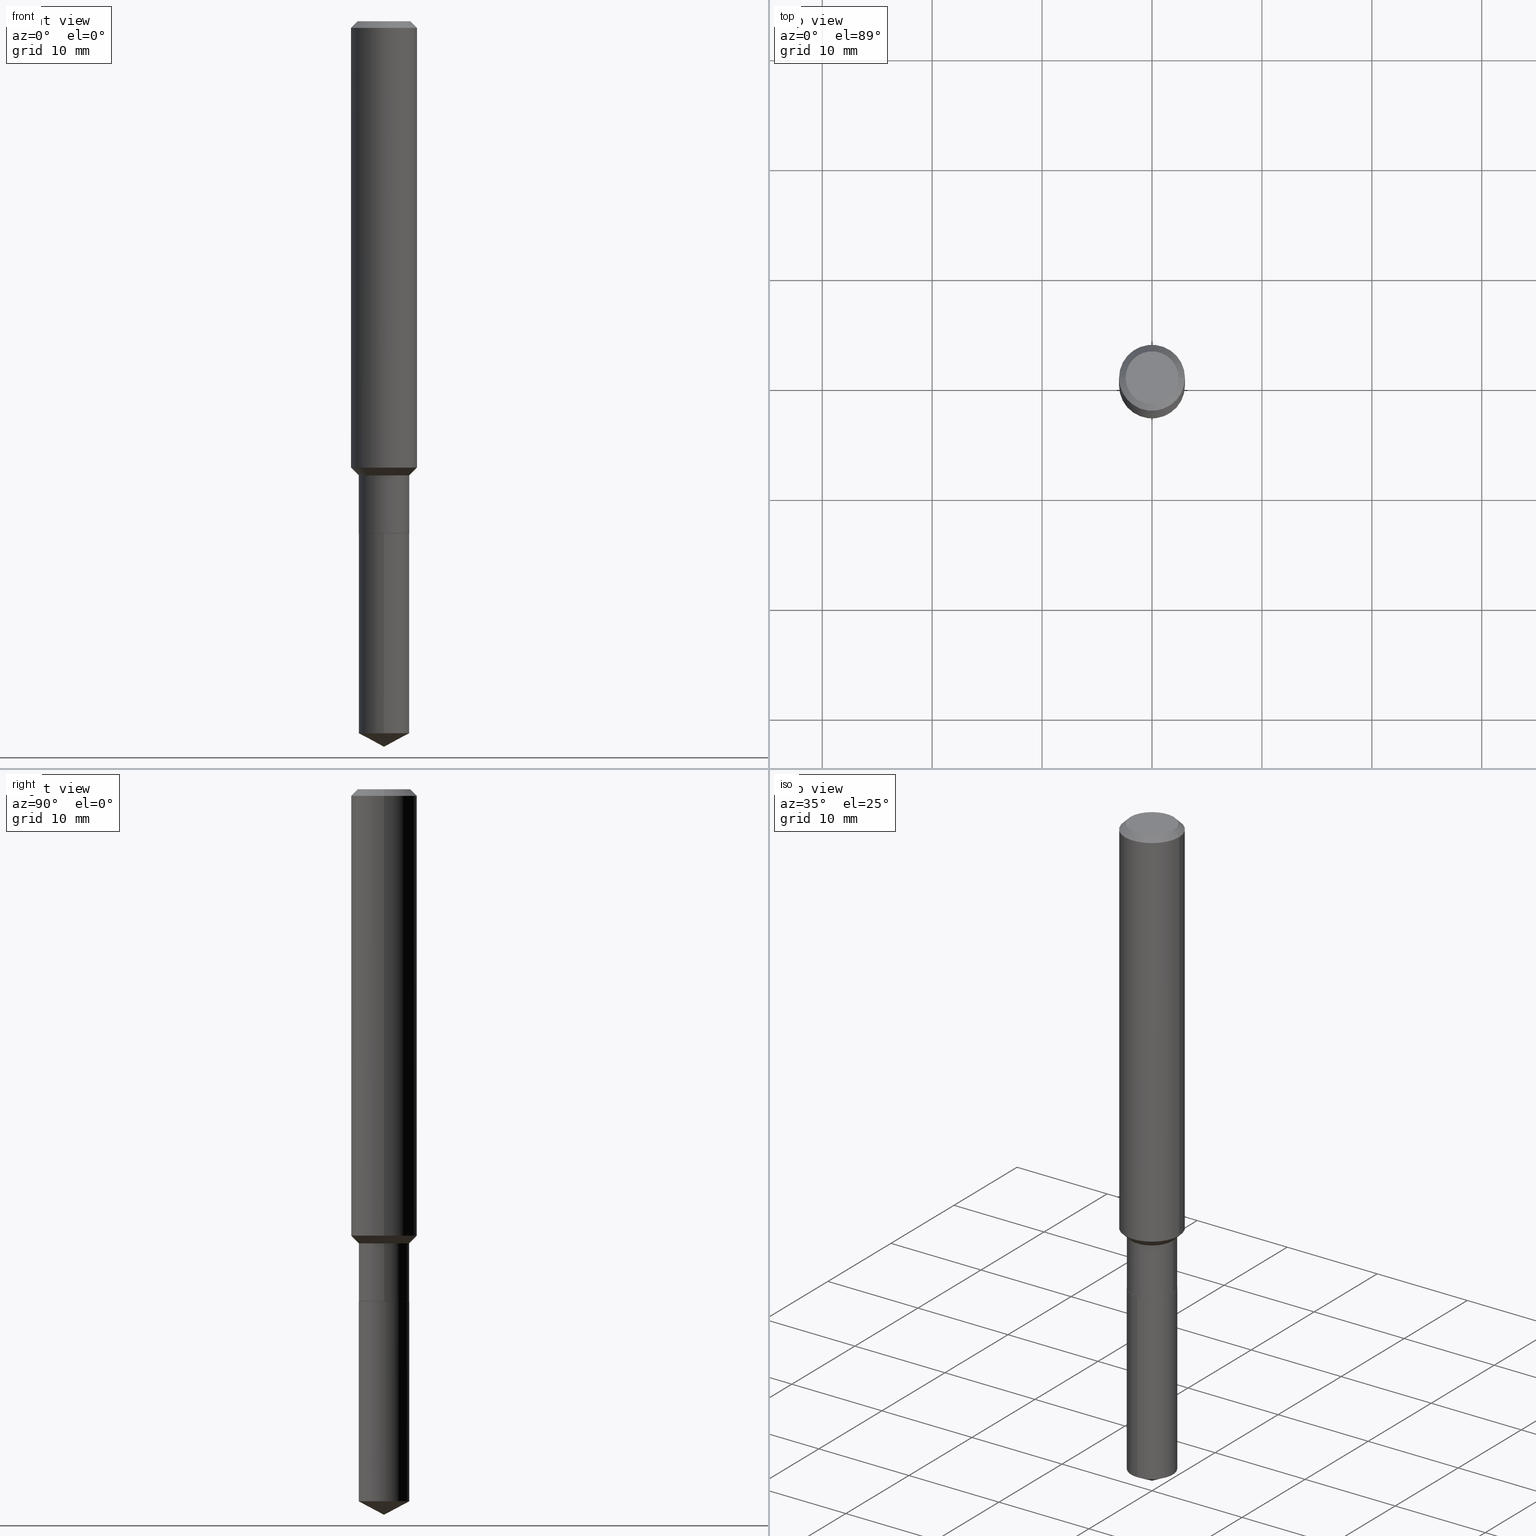
[diagram: canonical four-view strip — front | top / right | iso, engineering-drawing reading convention]
A machine part, canonical four-view strip (front | top / right | iso — engineering-drawing reading convention). The complete STEP part file that produces these views, byte-faithful:
ISO-10303-21;
HEADER;
FILE_DESCRIPTION (( 'STEP AP203' ),
    '1' );
FILE_NAME ('67616.STEP',
    '2024-04-25T07:20:22',
    ( '' ),
    ( '' ),
    'SwSTEP 2.0',
    'SolidWorks 2023',
    '' );
FILE_SCHEMA (( 'CONFIG_CONTROL_DESIGN' ));
ENDSEC;

DATA;
#1 = DIRECTION ( 'NONE',  ( -2.445468806185136597E-29, 3.491481338843145583E-15, 1.000000000000000000 ) ) ;
#2 = ORIENTED_EDGE ( 'NONE', *, *, #209, .F. ) ;
#3 = COORDINATED_UNIVERSAL_TIME_OFFSET ( 5, 0, .BEHIND. ) ;
#4 = VECTOR ( 'NONE', #157, 39.37007874015748143 ) ;
#5 = CIRCLE ( 'NONE', #415, 0.09055000000000000548 ) ;
#6 = DIRECTION ( 'NONE',  ( -2.445468806185136597E-29, 3.491481338843145583E-15, 1.000000000000000000 ) ) ;
#7 = COORDINATED_UNIVERSAL_TIME_OFFSET ( 5, 0, .BEHIND. ) ;
#8 = DIRECTION ( 'NONE',  ( -2.445468806185136597E-29, 3.491481338843145583E-15, 1.000000000000000000 ) ) ;
#9 = DIRECTION ( 'NONE',  ( 1.000000000000000000, -6.982962677686267499E-15, 4.875432709231658792E-29 ) ) ;
#10 = VECTOR ( 'NONE', #460, 39.37007874015748143 ) ;
#11 = ADVANCED_FACE ( 'NONE', ( #452 ), #405, .T. ) ;
#12 = CARTESIAN_POINT ( 'NONE',  ( 6.354235181530655358E-29, -9.072366735996945191E-15, -2.598399999999999821 ) ) ;
#13 = EDGE_CURVE ( 'NONE', #437, #378, #393, .T. ) ;
#14 = DIRECTION ( 'NONE',  ( -6.982962677686265133E-15, -1.000000000000000000, 3.541896320645524581E-15 ) ) ;
#15 = CARTESIAN_POINT ( 'NONE',  ( -0.09055000000000000548, 6.433964472307707573E-16, -4.454095724225817219E-30 ) ) ;
#16 = ORIENTED_EDGE ( 'NONE', *, *, #92, .T. ) ;
#17 = MANIFOLD_SOLID_BREP ( 'Body-Move/Copy2[1]', #131 ) ;
#18 = FACE_OUTER_BOUND ( 'NONE', #372, .T. ) ;
#19 = CIRCLE ( 'NONE', #341, 0.09055000000000000548 ) ;
#20 = CARTESIAN_POINT ( 'NONE',  ( -0.09054999999999999161, -5.397564565235639118E-15, -1.626299999999999857 ) ) ;
#21 = EDGE_LOOP ( 'NONE', ( #16, #145, #328, #257 ) ) ;
#22 = CARTESIAN_POINT ( 'NONE',  ( 4.486457071827251481E-29, -6.405471664241634119E-15, -1.834599999999999786 ) ) ;
#23 = ORIENTED_EDGE ( 'NONE', *, *, #485, .T. ) ;
#24 = PLANE ( 'NONE',  #119 ) ;
#25 = VECTOR ( 'NONE', #240, 39.37007874015748143 ) ;
#26 = VERTEX_POINT ( 'NONE', #80 ) ;
#27 = AXIS2_PLACEMENT_3D ( 'NONE', #144, #147, #470 ) ;
#28 = LOCAL_TIME ( 3, 20, 22.00000000000000000, #120 ) ;
#29 = DIRECTION ( 'NONE',  ( -2.445468806185136597E-29, 3.491481338843145583E-15, 1.000000000000000000 ) ) ;
#30 = APPROVAL ( #282, 'UNSPECIFIED' ) ;
#31 = ORIENTED_EDGE ( 'NONE', *, *, #101, .T. ) ;
#32 = ORIENTED_EDGE ( 'NONE', *, *, #485, .F. ) ;
#33 = CARTESIAN_POINT ( 'NONE',  ( 0.1181000000000001077, -8.246878922347488542E-16, 5.758764772215005345E-30 ) ) ;
#34 = AXIS2_PLACEMENT_3D ( 'NONE', #229, #97, #377 ) ;
#35 = FACE_OUTER_BOUND ( 'NONE', #204, .T. ) ;
#36 = PERSON_AND_ORGANIZATION ( #175, #408 ) ;
#37 = CARTESIAN_POINT ( 'NONE',  ( 6.354336269142020181E-29, -9.072223231152016117E-15, -2.598399999999999821 ) ) ;
#38 = PERSON_AND_ORGANIZATION ( #175, #408 ) ;
#39 = DIRECTION ( 'NONE',  ( 1.000000000000000000, -6.982962677686266711E-15, 0.000000000000000000 ) ) ;
#40 = CIRCLE ( 'NONE', #227, 0.1181000000000001909 ) ;
#41 = AXIS2_PLACEMENT_3D ( 'NONE', #379, #226, #186 ) ;
#42 = CARTESIAN_POINT ( 'NONE',  ( -0.09055000000000000548, -5.397564565235639118E-15, -1.834100000000000064 ) ) ;
#43 = CALENDAR_DATE ( 2024, 25, 4 ) ;
#44 = LINE ( 'NONE', #355, #140 ) ;
#45 = APPLICATION_PROTOCOL_DEFINITION ( 'international standard', 'config_control_design', 1994, #469 ) ;
#46 = DIRECTION ( 'NONE',  ( 0.7071067811865487940, -2.468850131082270471E-15, 0.7071067811865462405 ) ) ;
#47 = EDGE_LOOP ( 'NONE', ( #23, #311, #162, #381 ) ) ;
#48 = CC_DESIGN_DATE_AND_TIME_ASSIGNMENT ( #123, #275, ( #112 ) ) ;
#49 = VECTOR ( 'NONE', #174, 39.37007874015748854 ) ;
#50 = CARTESIAN_POINT ( 'NONE',  ( 6.354235181530655358E-29, -9.072366735996943613E-15, -2.598399999999999821 ) ) ;
#51 = ORIENTED_EDGE ( 'NONE', *, *, #198, .F. ) ;
#52 = DIRECTION ( 'NONE',  ( -2.445468806185136597E-29, 3.491481338843145583E-15, 1.000000000000000000 ) ) ;
#53 = ORIENTED_EDGE ( 'NONE', *, *, #143, .F. ) ;
#54 = DIRECTION ( 'NONE',  ( 1.000000000000000000, -6.982962677686266711E-15, 0.000000000000000000 ) ) ;
#55 = EDGE_CURVE ( 'NONE', #284, #299, #245, .T. ) ;
#56 = CC_DESIGN_APPROVAL ( #215, ( #425 ) ) ;
#57 = CARTESIAN_POINT ( 'NONE',  ( -6.323072704644292482E-16, -0.09055000000000894278, -2.550253710963052978 ) ) ;
#58 = ORIENTED_EDGE ( 'NONE', *, *, #258, .T. ) ;
#59 = DIRECTION ( 'NONE',  ( 2.445468806185136597E-29, -3.491481338843145583E-15, -1.000000000000000000 ) ) ;
#60 = VERTEX_POINT ( 'NONE', #238 ) ;
#61 = ADVANCED_FACE ( 'NONE', ( #35 ), #200, .F. ) ;
#62 = CARTESIAN_POINT ( 'NONE',  ( 0.09005000000000000504, -7.034287453367283370E-15, -1.834599999999999786 ) ) ;
#63 = ORIENTED_EDGE ( 'NONE', *, *, #283, .F. ) ;
#64 = DIRECTION ( 'NONE',  ( -1.000000000000000000, 6.982962677686265922E-15, -4.876176775795935793E-29 ) ) ;
#65 = CONICAL_SURFACE ( 'NONE', #171, 0.09005000000000000504, 0.7853981633975507526 ) ;
#66 = ORIENTED_EDGE ( 'NONE', *, *, #84, .F. ) ;
#67 = CIRCLE ( 'NONE', #95, 0.1180999999999999966 ) ;
#68 = APPROVAL_PERSON_ORGANIZATION ( #168, #30, #127 ) ;
#69 = EDGE_CURVE ( 'NONE', #361, #85, #449, .T. ) ;
#70 = ORIENTED_EDGE ( 'NONE', *, *, #390, .T. ) ;
#71 = LINE ( 'NONE', #75, #188 ) ;
#72 = ORIENTED_EDGE ( 'NONE', *, *, #472, .T. ) ;
#73 = EDGE_CURVE ( 'NONE', #359, #60, #40, .T. ) ;
#74 =( NAMED_UNIT ( * ) SI_UNIT ( $, .STERADIAN. ) SOLID_ANGLE_UNIT ( ) );
#75 = CARTESIAN_POINT ( 'NONE',  ( 6.433964472308155251E-16, 0.09054999999999360782, -1.834600000000000231 ) ) ;
#76 = ORIENTED_EDGE ( 'NONE', *, *, #143, .T. ) ;
#77 = AXIS2_PLACEMENT_3D ( 'NONE', #118, #383, #242 ) ;
#78 = CONICAL_SURFACE ( 'NONE', #468, 74.04434902938429275, 1.082104136236490710 ) ;
#79 = PERSON_AND_ORGANIZATION_ROLE ( 'creator' ) ;
#80 = CARTESIAN_POINT ( 'NONE',  ( 0.1180999999999999966, -9.071566814582237199E-16, -0.02362000000000013741 ) ) ;
#81 = CARTESIAN_POINT ( 'NONE',  ( 0.000000000000000000, 0.000000000000000000, 0.000000000000000000 ) ) ;
#82 = ADVANCED_FACE ( 'NONE', ( #274 ), #65, .T. ) ;
#83 = CARTESIAN_POINT ( 'NONE',  ( 6.236546352921157625E-29, -8.904191230834146069E-15, -2.550253710963053422 ) ) ;
#84 = EDGE_CURVE ( 'NONE', #337, #60, #314, .T. ) ;
#85 = VERTEX_POINT ( 'NONE', #346 ) ;
#86 = APPROVAL_DATE_TIME ( #352, #30 ) ;
#87 = VECTOR ( 'NONE', #105, 39.37007874015748143 ) ;
#88 = AXIS2_PLACEMENT_3D ( 'NONE', #81, #461, #241 ) ;
#89 = LINE ( 'NONE', #15, #10 ) ;
#90 = VERTEX_POINT ( 'NONE', #276 ) ;
#91 = CARTESIAN_POINT ( 'NONE',  ( 0.000000000000000000, 0.000000000000000000, 0.000000000000000000 ) ) ;
#92 = EDGE_CURVE ( 'NONE', #437, #90, #262, .T. ) ;
#93 = DIRECTION ( 'NONE',  ( 1.000000000000000000, -6.982962677686266711E-15, 4.876176775795935793E-29 ) ) ;
#94 = ORIENTED_EDGE ( 'NONE', *, *, #69, .F. ) ;
#95 = AXIS2_PLACEMENT_3D ( 'NONE', #182, #293, #54 ) ;
#96 = UNCERTAINTY_MEASURE_WITH_UNIT (LENGTH_MEASURE( 1.000000000000000082E-05 ), #102, 'distance_accuracy_value', 'NONE');
#97 = DIRECTION ( 'NONE',  ( -2.445441495355086560E-29, 3.491520449506213209E-15, 1.000000000000000000 ) ) ;
#98 = EDGE_LOOP ( 'NONE', ( #58, #414, #183, #94 ) ) ;
#99 = CARTESIAN_POINT ( 'NONE',  ( 0.000000000000000000, 0.000000000000000000, 0.000000000000000000 ) ) ;
#100 = ORIENTED_EDGE ( 'NONE', *, *, #317, .F. ) ;
#101 = EDGE_CURVE ( 'NONE', #85, #138, #348, .T. ) ;
#102 =( CONVERSION_BASED_UNIT ( 'INCH', #267 ) LENGTH_UNIT ( ) NAMED_UNIT ( #107 ) );
#103 = DIRECTION ( 'NONE',  ( -2.445468806185136597E-29, 3.491481338843145583E-15, 1.000000000000000000 ) ) ;
#104 = ORIENTED_EDGE ( 'NONE', *, *, #236, .T. ) ;
#105 = DIRECTION ( 'NONE',  ( 0.7071067811865460184, -7.319954787623251312E-15, -0.7071067811865490160 ) ) ;
#106 = ORIENTED_EDGE ( 'NONE', *, *, #55, .F. ) ;
#107 = DIMENSIONAL_EXPONENTS ( 1.000000000000000000, 0.000000000000000000, 0.000000000000000000, 0.000000000000000000, 0.000000000000000000, 0.000000000000000000, 0.000000000000000000 ) ;
#108 = DIRECTION ( 'NONE',  ( -6.982962677686266711E-15, -1.000000000000000000, 3.016949744521549444E-15 ) ) ;
#109 = DIRECTION ( 'NONE',  ( 1.000000000000000000, -6.982962677686267499E-15, 0.000000000000000000 ) ) ;
#110 = CONICAL_SURFACE ( 'NONE', #179, 0.09054999999999999161, 0.7853981633974501664 ) ;
#111 = EDGE_LOOP ( 'NONE', ( #63, #471, #76, #320 ) ) ;
#112 = SECURITY_CLASSIFICATION ( '', '', #279 ) ;
#113 = CC_DESIGN_PERSON_AND_ORGANIZATION_ASSIGNMENT ( #454, #347, ( #237 ) ) ;
#114 = DIRECTION ( 'NONE',  ( 1.000000000000000000, -6.982962677686266711E-15, 4.876176775795936353E-29 ) ) ;
#115 = DIRECTION ( 'NONE',  ( 2.445441495355086279E-29, -3.491520449506213209E-15, -1.000000000000000000 ) ) ;
#116 = FACE_OUTER_BOUND ( 'NONE', #111, .T. ) ;
#117 = PRODUCT_DEFINITION_SHAPE ( 'NONE', 'NONE',  #425 ) ;
#118 = CARTESIAN_POINT ( 'NONE',  ( 4.716267017698007905E-46, -6.733579360998555036E-32, -1.928573779297252010E-17 ) ) ;
#119 = AXIS2_PLACEMENT_3D ( 'NONE', #413, #264, #64 ) ;
#120 = COORDINATED_UNIVERSAL_TIME_OFFSET ( 5, 0, .BEHIND. ) ;
#121 = LOCAL_TIME ( 3, 20, 22.00000000000000000, #3 ) ;
#122 = CARTESIAN_POINT ( 'NONE',  ( 0.09005000000000000504, -7.034287453367283370E-15, -1.834599999999999786 ) ) ;
#123 = DATE_AND_TIME ( #43, #28 ) ;
#124 = EDGE_CURVE ( 'NONE', #284, #474, #391, .T. ) ;
#125 = PRODUCT ( '67616', '67616', '', ( #310 ) ) ;
#126 = DIRECTION ( 'NONE',  ( -2.445441495355086560E-29, 3.491520449506213209E-15, 1.000000000000000000 ) ) ;
#127 = APPROVAL_ROLE ( '' ) ;
#128 = EDGE_CURVE ( 'NONE', #301, #90, #429, .T. ) ;
#129 = DIRECTION ( 'NONE',  ( -6.982962677686266711E-15, -1.000000000000000000, 3.016949744521549444E-15 ) ) ;
#130 = APPROVAL_STATUS ( 'not_yet_approved' ) ;
#131 = CLOSED_SHELL ( 'NONE', ( #305, #292, #11, #407, #61 ) ) ;
#132 = AXIS2_PLACEMENT_3D ( 'NONE', #323, #287, #433 ) ;
#133 = CC_DESIGN_APPROVAL ( #30, ( #237 ) ) ;
#134 = PRODUCT_RELATED_PRODUCT_CATEGORY ( 'detail', '', ( #125 ) ) ;
#135 = CARTESIAN_POINT ( 'NONE',  ( 0.09447999999999998066, -7.704367267948738690E-16, -1.928573779296752193E-17 ) ) ;
#136 = ORIENTED_EDGE ( 'NONE', *, *, #55, .T. ) ;
#137 = DIRECTION ( 'NONE',  ( -2.445468806185136877E-29, 3.491481338843145188E-15, 1.000000000000000000 ) ) ;
#138 = VERTEX_POINT ( 'NONE', #42 ) ;
#139 = LINE ( 'NONE', #169, #289 ) ;
#140 = VECTOR ( 'NONE', #46, 39.37007874015748143 ) ;
#141 = CYLINDRICAL_SURFACE ( 'NONE', #281, 0.09055000000000000548 ) ;
#142 = EDGE_LOOP ( 'NONE', ( #136, #410 ) ) ;
#143 = EDGE_CURVE ( 'NONE', #359, #26, #155, .T. ) ;
#144 = CARTESIAN_POINT ( 'NONE',  ( 3.909693253888486103E-29, -5.582005790475478148E-15, -1.598749999999999671 ) ) ;
#145 = ORIENTED_EDGE ( 'NONE', *, *, #450, .T. ) ;
#146 = AXIS2_PLACEMENT_3D ( 'NONE', #180, #326, #404 ) ;
#147 = DIRECTION ( 'NONE',  ( -2.445468806185136597E-29, 3.491481338843145583E-15, 1.000000000000000000 ) ) ;
#148 = EDGE_LOOP ( 'NONE', ( #426, #233 ) ) ;
#149 = DIRECTION ( 'NONE',  ( -2.445441495355086560E-29, 3.491520449506213209E-15, 1.000000000000000000 ) ) ;
#150 = DIRECTION ( 'NONE',  ( -1.000000000000000000, 6.982962677686266711E-15, 0.000000000000000000 ) ) ;
#151 = ORIENTED_EDGE ( 'NONE', *, *, #92, .F. ) ;
#152 = DIRECTION ( 'NONE',  ( -2.445441495355086560E-29, 3.491520449506213209E-15, 1.000000000000000000 ) ) ;
#153 = ORIENTED_EDGE ( 'NONE', *, *, #205, .F. ) ;
#154 = AXIS2_PLACEMENT_3D ( 'NONE', #298, #224, #371 ) ;
#155 = LINE ( 'NONE', #33, #363 ) ;
#156 = CC_DESIGN_SECURITY_CLASSIFICATION ( #112, ( #237 ) ) ;
#157 = DIRECTION ( 'NONE',  ( -0.7071067811865487940, 7.493145998870358893E-15, 0.7071067811865462405 ) ) ;
#158 = CYLINDRICAL_SURFACE ( 'NONE', #392, 0.09055000000000000548 ) ;
#159 = CARTESIAN_POINT ( 'NONE',  ( 3.909693253888486103E-29, -5.582005790475478148E-15, -1.598749999999999671 ) ) ;
#160 = PERSON_AND_ORGANIZATION_ROLE ( 'design_owner' ) ;
#161 = DIRECTION ( 'NONE',  ( 1.000000000000000000, -6.982962677686266711E-15, 0.000000000000000000 ) ) ;
#162 = ORIENTED_EDGE ( 'NONE', *, *, #73, .F. ) ;
#163 = ADVANCED_FACE ( 'NONE', ( #116 ), #271, .T. ) ;
#164 = VECTOR ( 'NONE', #350, 39.37007874015748143 ) ;
#165 = AXIS2_PLACEMENT_3D ( 'NONE', #466, #216, #399 ) ;
#166 = CARTESIAN_POINT ( 'NONE',  ( -0.09054999999999999161, -5.034799654129836477E-15, -1.626299999999999857 ) ) ;
#167 = PERSON_AND_ORGANIZATION_ROLE ( 'classification_officer' ) ;
#168 = PERSON_AND_ORGANIZATION ( #175, #408 ) ;
#169 = CARTESIAN_POINT ( 'NONE',  ( -0.1181000000000001077, 8.391509709326790846E-16, -5.809262341591049389E-30 ) ) ;
#170 = VERTEX_POINT ( 'NONE', #322 ) ;
#171 = AXIS2_PLACEMENT_3D ( 'NONE', #451, #6, #235 ) ;
#172 = CONICAL_SURFACE ( 'NONE', #376, 0.09054999999999999161, 0.7853981633974501664 ) ;
#173 = DIRECTION ( 'NONE',  ( -2.445441495355086560E-29, 3.491520449506213209E-15, 1.000000000000000000 ) ) ;
#174 = DIRECTION ( 'NONE',  ( -6.165590087286847862E-15, -0.8829475928589283207, 0.4694715627858883078 ) ) ;
#175 = PERSON ( 'UNSPECIFIED', 'UNSPECIFIED', 'UNSPECIFIED', ('UNSPECIFIED'), ('UNSPECIFIED'), ('UNSPECIFIED') ) ;
#176 = CYLINDRICAL_SURFACE ( 'NONE', #132, 0.1181000000000001077 ) ;
#177 = EDGE_CURVE ( 'NONE', #170, #359, #44, .T. ) ;
#178 = EDGE_LOOP ( 'NONE', ( #31, #482, #32, #479 ) ) ;
#179 = AXIS2_PLACEMENT_3D ( 'NONE', #208, #8, #324 ) ;
#180 = CARTESIAN_POINT ( 'NONE',  ( 5.776197320209326656E-31, -8.246878922347558061E-17, -0.02362000000000013741 ) ) ;
#181 = ADVANCED_FACE ( 'NONE', ( #403 ), #110, .T. ) ;
#182 = CARTESIAN_POINT ( 'NONE',  ( 5.776197320209326656E-31, -8.246878922347558061E-17, -0.02362000000000013741 ) ) ;
#183 = ORIENTED_EDGE ( 'NONE', *, *, #101, .F. ) ;
#184 = DIRECTION ( 'NONE',  ( -6.982962677686266711E-15, -1.000000000000000000, 3.016949744521549444E-15 ) ) ;
#185 = EDGE_LOOP ( 'NONE', ( #309, #486, #189 ) ) ;
#186 = DIRECTION ( 'NONE',  ( 1.000000000000000000, -6.982962677686267499E-15, 0.000000000000000000 ) ) ;
#187 = CIRCLE ( 'NONE', #331, 0.09055000000000000548 ) ;
#188 = VECTOR ( 'NONE', #173, 39.37007874015748143 ) ;
#189 = ORIENTED_EDGE ( 'NONE', *, *, #390, .F. ) ;
#190 = DIRECTION ( 'NONE',  ( -2.438088387897960049E-29, 3.491481338843145188E-15, 1.000000000000000000 ) ) ;
#191 = ORIENTED_EDGE ( 'NONE', *, *, #317, .T. ) ;
#192 = FACE_OUTER_BOUND ( 'NONE', #178, .T. ) ;
#193 = ORIENTED_EDGE ( 'NONE', *, *, #124, .F. ) ;
#194 = AXIS2_PLACEMENT_3D ( 'NONE', #278, #126, #456 ) ;
#195 = LOCAL_TIME ( 3, 20, 22.00000000000000000, #421 ) ;
#196 = DIRECTION ( 'NONE',  ( -2.445468806185136877E-29, 3.491481338843145188E-15, 1.000000000000000000 ) ) ;
#197 = APPLICATION_CONTEXT ( 'configuration controlled 3d designs of mechanical parts and assemblies' ) ;
#198 = EDGE_CURVE ( 'NONE', #138, #337, #89, .T. ) ;
#199 = DIRECTION ( 'NONE',  ( -2.445468806185136597E-29, 3.491481338843145583E-15, 1.000000000000000000 ) ) ;
#200 = PLANE ( 'NONE',  #462 ) ;
#201 = APPROVAL_DATE_TIME ( #458, #215 ) ;
#202 = DIRECTION ( 'NONE',  ( 1.000000000000000000, -6.982962677686269077E-15, 0.000000000000000000 ) ) ;
#203 = APPROVAL_STATUS ( 'not_yet_approved' ) ;
#204 = EDGE_LOOP ( 'NONE', ( #304, #255 ) ) ;
#205 = EDGE_CURVE ( 'NONE', #337, #170, #356, .T. ) ;
#206 = CIRCLE ( 'NONE', #41, 0.09054999999999999161 ) ;
#207 = CC_DESIGN_APPROVAL ( #286, ( #112 ) ) ;
#208 = CARTESIAN_POINT ( 'NONE',  ( 3.977065919498887245E-29, -5.678196101360606544E-15, -1.626299999999999857 ) ) ;
#209 = EDGE_CURVE ( 'NONE', #301, #437, #357, .T. ) ;
#210 = APPROVAL_DATE_TIME ( #243, #286 ) ;
#211 = CARTESIAN_POINT ( 'NONE',  ( 3.977065919498887245E-29, -5.678196101360606544E-15, -1.626299999999999857 ) ) ;
#212 = CIRCLE ( 'NONE', #27, 0.1181000000000001909 ) ;
#213 = FACE_OUTER_BOUND ( 'NONE', #296, .T. ) ;
#214 = ORIENTED_EDGE ( 'NONE', *, *, #218, .F. ) ;
#215 = APPROVAL ( #130, 'UNSPECIFIED' ) ;
#216 = DIRECTION ( 'NONE',  ( -2.445468806185136597E-29, 3.491481338843145583E-15, 1.000000000000000000 ) ) ;
#217 = FACE_OUTER_BOUND ( 'NONE', #420, .T. ) ;
#218 = EDGE_CURVE ( 'NONE', #443, #378, #187, .T. ) ;
#219 = CARTESIAN_POINT ( 'NONE',  ( 6.433964472308331759E-16, 0.09054999999999360782, -1.834600000000000231 ) ) ;
#220 = ORIENTED_EDGE ( 'NONE', *, *, #73, .T. ) ;
#221 = CC_DESIGN_PERSON_AND_ORGANIZATION_ASSIGNMENT ( #277, #167, ( #112 ) ) ;
#222 = ORIENTED_EDGE ( 'NONE', *, *, #351, .T. ) ;
#223 =( NAMED_UNIT ( * ) PLANE_ANGLE_UNIT ( ) SI_UNIT ( $, .RADIAN. ) );
#224 = DIRECTION ( 'NONE',  ( -2.445441495355086560E-29, 3.491520449506213209E-15, 1.000000000000000000 ) ) ;
#225 = EDGE_LOOP ( 'NONE', ( #483, #106, #369, #222 ) ) ;
#226 = DIRECTION ( 'NONE',  ( -2.445468806185136597E-29, 3.491481338843145583E-15, 1.000000000000000000 ) ) ;
#227 = AXIS2_PLACEMENT_3D ( 'NONE', #159, #419, #202 ) ;
#228 = AXIS2_PLACEMENT_3D ( 'NONE', #280, #52, #360 ) ;
#229 = CARTESIAN_POINT ( 'NONE',  ( 4.486457071827251481E-29, -6.405471664241634119E-15, -1.834599999999999786 ) ) ;
#230 = ORIENTED_EDGE ( 'NONE', *, *, #177, .T. ) ;
#231 = DIRECTION ( 'NONE',  ( -2.445468806185136877E-29, 3.491481338843145188E-15, 1.000000000000000000 ) ) ;
#232 = CARTESIAN_POINT ( 'NONE',  ( 0.000000000000000000, 0.000000000000000000, 0.000000000000000000 ) ) ;
#233 = ORIENTED_EDGE ( 'NONE', *, *, #236, .F. ) ;
#234 = CARTESIAN_POINT ( 'NONE',  ( 0.09055000000000000548, -6.323072704644914696E-16, 4.415378070483220808E-30 ) ) ;
#235 = DIRECTION ( 'NONE',  ( 1.000000000000000000, -6.982962677686271444E-15, 0.000000000000000000 ) ) ;
#236 = EDGE_CURVE ( 'NONE', #412, #361, #455, .T. ) ;
#237 = PRODUCT_DEFINITION_FORMATION_WITH_SPECIFIED_SOURCE ( 'ANY', '', #125, .NOT_KNOWN. ) ;
#238 = CARTESIAN_POINT ( 'NONE',  ( -0.1181000000000001909, -4.742854819542799162E-15, -1.598749999999999671 ) ) ;
#239 = CALENDAR_DATE ( 2024, 25, 4 ) ;
#240 = DIRECTION ( 'NONE',  ( -0.7071067811865460184, 2.468850131082241283E-15, -0.7071067811865490160 ) ) ;
#241 = DIRECTION ( 'NONE',  ( 1.000000000000000000, 0.000000000000000000, 0.000000000000000000 ) ) ;
#242 = DIRECTION ( 'NONE',  ( 1.000000000000000000, -6.982962677686267499E-15, 4.875432709231658792E-29 ) ) ;
#243 = DATE_AND_TIME ( #427, #121 ) ;
#244 = DIRECTION ( 'NONE',  ( 6.273719981627778698E-15, 0.8829475928589315403, 0.4694715627858820350 ) ) ;
#245 = CIRCLE ( 'NONE', #77, 0.09447999999999998066 ) ;
#246 = PERSON_AND_ORGANIZATION ( #175, #408 ) ;
#247 = DIRECTION ( 'NONE',  ( -2.445441495355086560E-29, 3.491520449506213209E-15, 1.000000000000000000 ) ) ;
#248 = ORIENTED_EDGE ( 'NONE', *, *, #467, .F. ) ;
#249 = CARTESIAN_POINT ( 'NONE',  ( -8.992293894059875118E-28, 1.283891400363551782E-13, 36.77167874015748339 ) ) ;
#250 = AXIS2_PLACEMENT_3D ( 'NONE', #319, #285, #9 ) ;
#251 = DIRECTION ( 'NONE',  ( -2.445468806185136597E-29, 3.491481338843145583E-15, 1.000000000000000000 ) ) ;
#252 = CARTESIAN_POINT ( 'NONE',  ( -0.09005000000000000504, -5.762978703515552960E-15, -1.834599999999999786 ) ) ;
#253 = ORIENTED_EDGE ( 'NONE', *, *, #205, .T. ) ;
#254 = DIRECTION ( 'NONE',  ( 1.000000000000000000, -6.982962677686265922E-15, 4.876176775795935793E-29 ) ) ;
#255 = ORIENTED_EDGE ( 'NONE', *, *, #218, .T. ) ;
#256 = CARTESIAN_POINT ( 'NONE',  ( 0.1181000000000001909, -6.406693682710227199E-15, -1.598749999999999671 ) ) ;
#257 = ORIENTED_EDGE ( 'NONE', *, *, #13, .F. ) ;
#258 = EDGE_CURVE ( 'NONE', #361, #412, #434, .T. ) ;
#259 = DIRECTION ( 'NONE',  ( 1.000000000000000000, -6.982962677686266711E-15, 4.876176775795936353E-29 ) ) ;
#260 = EDGE_LOOP ( 'NONE', ( #2, #385, #151 ) ) ;
#261 =( LENGTH_UNIT ( ) NAMED_UNIT ( * ) SI_UNIT ( $, .METRE. ) );
#262 = CIRCLE ( 'NONE', #306, 0.09055000000000000548 ) ;
#263 = AXIS2_PLACEMENT_3D ( 'NONE', #99, #103, #259 ) ;
#264 = DIRECTION ( 'NONE',  ( 2.438088387897960049E-29, -3.491481338843145188E-15, -1.000000000000000000 ) ) ;
#265 = LOCAL_TIME ( 3, 20, 22.00000000000000000, #424 ) ;
#266 = ORIENTED_EDGE ( 'NONE', *, *, #467, .T. ) ;
#267 = LENGTH_MEASURE_WITH_UNIT ( LENGTH_MEASURE( 0.02539999999999999897 ), #261 );
#268 = DIRECTION ( 'NONE',  ( -2.445468806185136597E-29, 3.491481338843145583E-15, 1.000000000000000000 ) ) ;
#269 = CARTESIAN_POINT ( 'NONE',  ( 4.486457071827251481E-29, -6.405471664241634119E-15, -1.834599999999999786 ) ) ;
#270 = CARTESIAN_POINT ( 'NONE',  ( 4.486457071827251481E-29, -6.405471664241634119E-15, -1.834599999999999786 ) ) ;
#271 = CYLINDRICAL_SURFACE ( 'NONE', #398, 0.1181000000000001077 ) ;
#272 = CALENDAR_DATE ( 2024, 25, 4 ) ;
#273 = AXIS2_PLACEMENT_3D ( 'NONE', #211, #465, #291 ) ;
#274 = FACE_OUTER_BOUND ( 'NONE', #432, .T. ) ;
#275 = DATE_TIME_ROLE ( 'classification_date' ) ;
#276 = CARTESIAN_POINT ( 'NONE',  ( 6.433964472308332745E-16, 0.09054999999999110982, -2.550253710963054310 ) ) ;
#277 = PERSON_AND_ORGANIZATION ( #175, #408 ) ;
#278 = CARTESIAN_POINT ( 'NONE',  ( -8.992293894059875118E-28, 1.283891400363551782E-13, 36.77167874015748339 ) ) ;
#279 = SECURITY_CLASSIFICATION_LEVEL ( 'unclassified' ) ;
#280 = CARTESIAN_POINT ( 'NONE',  ( 4.486457071827251481E-29, -6.405471664241634119E-15, -1.834599999999999786 ) ) ;
#281 = AXIS2_PLACEMENT_3D ( 'NONE', #22, #152, #184 ) ;
#282 = APPROVAL_STATUS ( 'not_yet_approved' ) ;
#283 = EDGE_CURVE ( 'NONE', #60, #474, #139, .T. ) ;
#284 = VERTEX_POINT ( 'NONE', #396 ) ;
#285 = DIRECTION ( 'NONE',  ( -2.445468806185136597E-29, 3.491481338843145583E-15, 1.000000000000000000 ) ) ;
#286 = APPROVAL ( #203, 'UNSPECIFIED' ) ;
#287 = DIRECTION ( 'NONE',  ( -2.445468806185136597E-29, 3.491481338843145583E-15, 1.000000000000000000 ) ) ;
#288 = CLOSED_SHELL ( 'NONE', ( #459, #435, #302, #181, #453, #338, #428, #163, #397, #394, #321, #82 ) ) ;
#289 = VECTOR ( 'NONE', #137, 39.37007874015748143 ) ;
#290 = EDGE_CURVE ( 'NONE', #299, #284, #422, .T. ) ;
#291 = DIRECTION ( 'NONE',  ( 1.000000000000000000, -6.982962677686267499E-15, 0.000000000000000000 ) ) ;
#292 = ADVANCED_FACE ( 'NONE', ( #431 ), #78, .T. ) ;
#293 = DIRECTION ( 'NONE',  ( -2.445468806185136597E-29, 3.491481338843145583E-15, 1.000000000000000000 ) ) ;
#294 = ORIENTED_EDGE ( 'NONE', *, *, #370, .F. ) ;
#295 = CARTESIAN_POINT ( 'NONE',  ( -0.09005000000000000504, -5.765627930689664162E-15, -1.834599999999999786 ) ) ;
#296 = EDGE_LOOP ( 'NONE', ( #220, #330, #100, #53 ) ) ;
#297 = APPROVAL_PERSON_ORGANIZATION ( #395, #215, #487 ) ;
#298 = CARTESIAN_POINT ( 'NONE',  ( 6.236546352921157625E-29, -8.904191230834146069E-15, -2.550253710963053422 ) ) ;
#299 = VERTEX_POINT ( 'NONE', #135 ) ;
#300 = CARTESIAN_POINT ( 'NONE',  ( 0.1180999999999999966, -8.926936027602933910E-16, -0.02362000000000013741 ) ) ;
#301 = VERTEX_POINT ( 'NONE', #50 ) ;
#302 = ADVANCED_FACE ( 'NONE', ( #213 ), #176, .T. ) ;
#303 = DIRECTION ( 'NONE',  ( -2.445468806185136597E-29, 3.491481338843145583E-15, 1.000000000000000000 ) ) ;
#304 = ORIENTED_EDGE ( 'NONE', *, *, #480, .T. ) ;
#305 = ADVANCED_FACE ( 'NONE', ( #368 ), #141, .T. ) ;
#306 = AXIS2_PLACEMENT_3D ( 'NONE', #83, #457, #342 ) ;
#307 = CIRCLE ( 'NONE', #366, 0.1180999999999999966 ) ;
#308 = CC_DESIGN_PERSON_AND_ORGANIZATION_ASSIGNMENT ( #246, #79, ( #425 ) ) ;
#309 = ORIENTED_EDGE ( 'NONE', *, *, #128, .F. ) ;
#310 = MECHANICAL_CONTEXT ( 'NONE', #197, 'mechanical' ) ;
#311 = ORIENTED_EDGE ( 'NONE', *, *, #84, .T. ) ;
#312 = DATE_TIME_ROLE ( 'creation_date' ) ;
#313 = CONICAL_SURFACE ( 'NONE', #146, 0.1180999999999999966, 0.7853981633974461696 ) ;
#314 = LINE ( 'NONE', #166, #4 ) ;
#315 = CARTESIAN_POINT ( 'NONE',  ( -6.323072704644466031E-16, -0.09055000000000641702, -1.834599999999999564 ) ) ;
#316 = APPLICATION_PROTOCOL_DEFINITION ( 'international standard', 'config_control_design', 1994, #197 ) ;
#317 = EDGE_CURVE ( 'NONE', #26, #474, #307, .T. ) ;
#318 = VECTOR ( 'NONE', #489, 39.37007874015748143 ) ;
#319 = CARTESIAN_POINT ( 'NONE',  ( 4.716267017698007905E-46, -6.733579360998555036E-32, -1.928573779297252010E-17 ) ) ;
#320 = ORIENTED_EDGE ( 'NONE', *, *, #351, .F. ) ;
#321 = ADVANCED_FACE ( 'NONE', ( #333 ), #411, .F. ) ;
#322 = CARTESIAN_POINT ( 'NONE',  ( 0.09054999999999999161, -6.310503371825098014E-15, -1.626299999999999857 ) ) ;
#323 = CARTESIAN_POINT ( 'NONE',  ( 0.000000000000000000, 0.000000000000000000, 0.000000000000000000 ) ) ;
#324 = DIRECTION ( 'NONE',  ( 1.000000000000000000, -6.982962677686267499E-15, 0.000000000000000000 ) ) ;
#325 = AXIS2_PLACEMENT_3D ( 'NONE', #423, #388, #39 ) ;
#326 = DIRECTION ( 'NONE',  ( 2.445468806185136597E-29, -3.491481338843145583E-15, -1.000000000000000000 ) ) ;
#327 = CARTESIAN_POINT ( 'NONE',  ( 4.486457071827251481E-29, -6.405471664241634119E-15, -1.834599999999999786 ) ) ;
#328 = ORIENTED_EDGE ( 'NONE', *, *, #480, .F. ) ;
#329 = LINE ( 'NONE', #300, #87 ) ;
#330 = ORIENTED_EDGE ( 'NONE', *, *, #283, .T. ) ;
#331 = AXIS2_PLACEMENT_3D ( 'NONE', #401, #247, #129 ) ;
#332 = AXIS2_PLACEMENT_3D ( 'NONE', #270, #268, #387 ) ;
#333 = FACE_OUTER_BOUND ( 'NONE', #148, .T. ) ;
#334 = CC_DESIGN_DATE_AND_TIME_ASSIGNMENT ( #386, #312, ( #425 ) ) ;
#335 = ORIENTED_EDGE ( 'NONE', *, *, #402, .T. ) ;
#336 = CYLINDRICAL_SURFACE ( 'NONE', #34, 0.09055000000000000548 ) ;
#337 = VERTEX_POINT ( 'NONE', #20 ) ;
#338 = ADVANCED_FACE ( 'NONE', ( #438 ), #374, .T. ) ;
#339 = CARTESIAN_POINT ( 'NONE',  ( -0.1180999999999999966, 7.422191030112725094E-16, -0.02362000000000013741 ) ) ;
#340 = CARTESIAN_POINT ( 'NONE',  ( -0.1180999999999999966, -1.993086318916797028E-15, -0.02362000000000013741 ) ) ;
#341 = AXIS2_PLACEMENT_3D ( 'NONE', #441, #149, #108 ) ;
#342 = DIRECTION ( 'NONE',  ( -6.982962677686266711E-15, -1.000000000000000000, 6.033899489043098888E-15 ) ) ;
#343 = DIRECTION ( 'NONE',  ( 6.982962677686265922E-15, 1.000000000000000000, -3.491520449506213209E-15 ) ) ;
#344 = PERSON_AND_ORGANIZATION ( #175, #408 ) ;
#345 = CARTESIAN_POINT ( 'NONE',  ( 4.485234337424158680E-29, -6.403725923572213404E-15, -1.834100000000000064 ) ) ;
#346 = CARTESIAN_POINT ( 'NONE',  ( 0.09055000000000000548, -7.036033194036704874E-15, -1.834100000000000064 ) ) ;
#347 = PERSON_AND_ORGANIZATION_ROLE ( 'design_supplier' ) ;
#348 = CIRCLE ( 'NONE', #325, 0.09055000000000000548 ) ;
#349 = VECTOR ( 'NONE', #473, 39.37007874015748143 ) ;
#350 = DIRECTION ( 'NONE',  ( -2.445441495355086560E-29, 3.491520449506213209E-15, 1.000000000000000000 ) ) ;
#351 = EDGE_CURVE ( 'NONE', #474, #26, #67, .T. ) ;
#352 = DATE_AND_TIME ( #389, #265 ) ;
#353 = SHAPE_DEFINITION_REPRESENTATION ( #117, #373 ) ;
#354 = MANIFOLD_SOLID_BREP ( 'Body-Move/Copy2[2]', #288 ) ;
#355 = CARTESIAN_POINT ( 'NONE',  ( 0.09054999999999999161, -6.310503371825098014E-15, -1.626299999999999857 ) ) ;
#356 = CIRCLE ( 'NONE', #273, 0.09054999999999999161 ) ;
#357 = LINE ( 'NONE', #12, #49 ) ;
#358 = CONICAL_SURFACE ( 'NONE', #477, 0.1180999999999999966, 0.7853981633974461696 ) ;
#359 = VERTEX_POINT ( 'NONE', #256 ) ;
#360 = DIRECTION ( 'NONE',  ( 1.000000000000000000, -6.982962677686271444E-15, 0.000000000000000000 ) ) ;
#361 = VERTEX_POINT ( 'NONE', #62 ) ;
#362 = CARTESIAN_POINT ( 'NONE',  ( 5.776197320209326656E-31, -8.246878922347558061E-17, -0.02362000000000013741 ) ) ;
#363 = VECTOR ( 'NONE', #196, 39.37007874015748143 ) ;
#364 = CC_DESIGN_PERSON_AND_ORGANIZATION_ASSIGNMENT ( #344, #490, ( #237 ) ) ;
#365 = VECTOR ( 'NONE', #231, 39.37007874015748143 ) ;
#366 = AXIS2_PLACEMENT_3D ( 'NONE', #362, #29, #442 ) ;
#367 = APPROVAL_PERSON_ORGANIZATION ( #38, #286, #430 ) ;
#368 = FACE_OUTER_BOUND ( 'NONE', #21, .T. ) ;
#369 = ORIENTED_EDGE ( 'NONE', *, *, #124, .T. ) ;
#370 = EDGE_CURVE ( 'NONE', #412, #138, #444, .T. ) ;
#371 = DIRECTION ( 'NONE',  ( -6.982962677686266711E-15, -1.000000000000000000, 6.033899489043098888E-15 ) ) ;
#372 = EDGE_LOOP ( 'NONE', ( #445, #335, #191, #193 ) ) ;
#373 = ADVANCED_BREP_SHAPE_REPRESENTATION ( '67616', ( #17, #354, #88 ), #448 ) ;
#374 = CYLINDRICAL_SURFACE ( 'NONE', #263, 0.09055000000000000548 ) ;
#375 = ORIENTED_EDGE ( 'NONE', *, *, #416, .F. ) ;
#376 = AXIS2_PLACEMENT_3D ( 'NONE', #481, #303, #109 ) ;
#377 = DIRECTION ( 'NONE',  ( -6.982962677686266711E-15, -1.000000000000000000, 3.016949744521549444E-15 ) ) ;
#378 = VERTEX_POINT ( 'NONE', #409 ) ;
#379 = CARTESIAN_POINT ( 'NONE',  ( 3.977065919498887245E-29, -5.678196101360606544E-15, -1.626299999999999857 ) ) ;
#380 = FACE_OUTER_BOUND ( 'NONE', #98, .T. ) ;
#381 = ORIENTED_EDGE ( 'NONE', *, *, #177, .F. ) ;
#382 = DESIGN_CONTEXT ( 'detailed design', #469, 'design' ) ;
#383 = DIRECTION ( 'NONE',  ( -2.445468806185136597E-29, 3.491481338843145583E-15, 1.000000000000000000 ) ) ;
#384 = VECTOR ( 'NONE', #244, 39.37007874015748854 ) ;
#385 = ORIENTED_EDGE ( 'NONE', *, *, #128, .T. ) ;
#386 = DATE_AND_TIME ( #239, #195 ) ;
#387 = DIRECTION ( 'NONE',  ( 1.000000000000000000, -6.982962677686271444E-15, 0.000000000000000000 ) ) ;
#388 = DIRECTION ( 'NONE',  ( -2.445468806185136597E-29, 3.491481338843145583E-15, 1.000000000000000000 ) ) ;
#389 = CALENDAR_DATE ( 2024, 25, 4 ) ;
#390 = EDGE_CURVE ( 'NONE', #90, #437, #400, .T. ) ;
#391 = LINE ( 'NONE', #339, #25 ) ;
#392 = AXIS2_PLACEMENT_3D ( 'NONE', #232, #199, #114 ) ;
#393 = LINE ( 'NONE', #315, #164 ) ;
#394 = ADVANCED_FACE ( 'NONE', ( #446 ), #24, .F. ) ;
#395 = PERSON_AND_ORGANIZATION ( #175, #408 ) ;
#396 = CARTESIAN_POINT ( 'NONE',  ( -0.09447999999999998066, 7.009847083995354710E-16, -1.928573779297727792E-17 ) ) ;
#397 = ADVANCED_FACE ( 'NONE', ( #436 ), #358, .T. ) ;
#398 = AXIS2_PLACEMENT_3D ( 'NONE', #91, #251, #93 ) ;
#399 = DIRECTION ( 'NONE',  ( 1.000000000000000000, -6.982962677686271444E-15, 0.000000000000000000 ) ) ;
#400 = CIRCLE ( 'NONE', #154, 0.09055000000000000548 ) ;
#401 = CARTESIAN_POINT ( 'NONE',  ( 4.486457071827251481E-29, -6.405471664241634119E-15, -1.834599999999999786 ) ) ;
#402 = EDGE_CURVE ( 'NONE', #299, #26, #329, .T. ) ;
#403 = FACE_OUTER_BOUND ( 'NONE', #47, .T. ) ;
#404 = DIRECTION ( 'NONE',  ( -1.000000000000000000, 6.982962677686266711E-15, 0.000000000000000000 ) ) ;
#405 = CONICAL_SURFACE ( 'NONE', #194, 74.04434902938429275, 1.082104136236490710 ) ;
#406 = EDGE_LOOP ( 'NONE', ( #439, #70, #476, #214 ) ) ;
#407 = ADVANCED_FACE ( 'NONE', ( #475 ), #336, .T. ) ;
#408 = ORGANIZATION ( 'UNSPECIFIED', 'UNSPECIFIED', '' ) ;
#409 = CARTESIAN_POINT ( 'NONE',  ( -6.323072704644466031E-16, -0.09055000000000641702, -1.834599999999999564 ) ) ;
#410 = ORIENTED_EDGE ( 'NONE', *, *, #290, .T. ) ;
#411 = PLANE ( 'NONE',  #463 ) ;
#412 = VERTEX_POINT ( 'NONE', #252 ) ;
#413 = CARTESIAN_POINT ( 'NONE',  ( 2.358133508849003952E-46, -3.366789680499277518E-32, -9.642868896486260050E-18 ) ) ;
#414 = ORIENTED_EDGE ( 'NONE', *, *, #370, .T. ) ;
#415 = AXIS2_PLACEMENT_3D ( 'NONE', #345, #1, #161 ) ;
#416 = EDGE_CURVE ( 'NONE', #60, #359, #212, .T. ) ;
#417 = EDGE_LOOP ( 'NONE', ( #51, #266, #72, #153 ) ) ;
#418 = LINE ( 'NONE', #234, #365 ) ;
#419 = DIRECTION ( 'NONE',  ( -2.445468806185136597E-29, 3.491481338843145583E-15, 1.000000000000000000 ) ) ;
#420 = EDGE_LOOP ( 'NONE', ( #66, #253, #230, #375 ) ) ;
#421 = COORDINATED_UNIVERSAL_TIME_OFFSET ( 5, 0, .BEHIND. ) ;
#422 = CIRCLE ( 'NONE', #250, 0.09447999999999998066 ) ;
#423 = CARTESIAN_POINT ( 'NONE',  ( 4.485234337424158680E-29, -6.403725923572213404E-15, -1.834100000000000064 ) ) ;
#424 = COORDINATED_UNIVERSAL_TIME_OFFSET ( 5, 0, .BEHIND. ) ;
#425 = PRODUCT_DEFINITION ( 'UNKNOWN', '', #237, #382 ) ;
#426 = ORIENTED_EDGE ( 'NONE', *, *, #258, .F. ) ;
#427 = CALENDAR_DATE ( 2024, 25, 4 ) ;
#428 = ADVANCED_FACE ( 'NONE', ( #217 ), #172, .T. ) ;
#429 = LINE ( 'NONE', #37, #384 ) ;
#430 = APPROVAL_ROLE ( '' ) ;
#431 = FACE_OUTER_BOUND ( 'NONE', #260, .T. ) ;
#432 = EDGE_LOOP ( 'NONE', ( #294, #104, #447, #248 ) ) ;
#433 = DIRECTION ( 'NONE',  ( 1.000000000000000000, -6.982962677686266711E-15, 4.876176775795935793E-29 ) ) ;
#434 = CIRCLE ( 'NONE', #165, 0.09005000000000000504 ) ;
#435 = ADVANCED_FACE ( 'NONE', ( #18 ), #313, .T. ) ;
#436 = FACE_OUTER_BOUND ( 'NONE', #225, .T. ) ;
#437 = VERTEX_POINT ( 'NONE', #57 ) ;
#438 = FACE_OUTER_BOUND ( 'NONE', #417, .T. ) ;
#439 = ORIENTED_EDGE ( 'NONE', *, *, #450, .F. ) ;
#440 = CONICAL_SURFACE ( 'NONE', #332, 0.09005000000000000504, 0.7853981633975507526 ) ;
#441 = CARTESIAN_POINT ( 'NONE',  ( 4.486457071827251481E-29, -6.405471664241634119E-15, -1.834599999999999786 ) ) ;
#442 = DIRECTION ( 'NONE',  ( 1.000000000000000000, -6.982962677686266711E-15, 0.000000000000000000 ) ) ;
#443 = VERTEX_POINT ( 'NONE', #219 ) ;
#444 = LINE ( 'NONE', #295, #349 ) ;
#445 = ORIENTED_EDGE ( 'NONE', *, *, #290, .F. ) ;
#446 = FACE_OUTER_BOUND ( 'NONE', #142, .T. ) ;
#447 = ORIENTED_EDGE ( 'NONE', *, *, #69, .T. ) ;
#448 =( GEOMETRIC_REPRESENTATION_CONTEXT ( 3 ) GLOBAL_UNCERTAINTY_ASSIGNED_CONTEXT ( ( #96 ) ) GLOBAL_UNIT_ASSIGNED_CONTEXT ( ( #102, #223, #74 ) ) REPRESENTATION_CONTEXT ( 'NONE', 'WORKASPACE' ) );
#449 = LINE ( 'NONE', #122, #318 ) ;
#450 = EDGE_CURVE ( 'NONE', #90, #443, #71, .T. ) ;
#451 = CARTESIAN_POINT ( 'NONE',  ( 4.486457071827251481E-29, -6.405471664241634119E-15, -1.834599999999999786 ) ) ;
#452 = FACE_OUTER_BOUND ( 'NONE', #185, .T. ) ;
#453 = ADVANCED_FACE ( 'NONE', ( #192 ), #158, .T. ) ;
#454 = PERSON_AND_ORGANIZATION ( #175, #408 ) ;
#455 = CIRCLE ( 'NONE', #228, 0.09005000000000000504 ) ;
#456 = DIRECTION ( 'NONE',  ( -6.982962677686265133E-15, -1.000000000000000000, 3.541896320645524581E-15 ) ) ;
#457 = DIRECTION ( 'NONE',  ( -2.445441495355086560E-29, 3.491520449506213209E-15, 1.000000000000000000 ) ) ;
#458 = DATE_AND_TIME ( #272, #484 ) ;
#459 = ADVANCED_FACE ( 'NONE', ( #380 ), #440, .T. ) ;
#460 = DIRECTION ( 'NONE',  ( -2.445468806185136877E-29, 3.491481338843145188E-15, 1.000000000000000000 ) ) ;
#461 = DIRECTION ( 'NONE',  ( 0.000000000000000000, 0.000000000000000000, 1.000000000000000000 ) ) ;
#462 = AXIS2_PLACEMENT_3D ( 'NONE', #269, #115, #343 ) ;
#463 = AXIS2_PLACEMENT_3D ( 'NONE', #327, #190, #254 ) ;
#464 = DIRECTION ( 'NONE',  ( -2.445441495355086560E-29, 3.491520449506213209E-15, 1.000000000000000000 ) ) ;
#465 = DIRECTION ( 'NONE',  ( -2.445468806185136597E-29, 3.491481338843145583E-15, 1.000000000000000000 ) ) ;
#466 = CARTESIAN_POINT ( 'NONE',  ( 4.486457071827251481E-29, -6.405471664241634119E-15, -1.834599999999999786 ) ) ;
#467 = EDGE_CURVE ( 'NONE', #138, #85, #5, .T. ) ;
#468 = AXIS2_PLACEMENT_3D ( 'NONE', #249, #464, #14 ) ;
#469 = APPLICATION_CONTEXT ( 'configuration controlled 3d designs of mechanical parts and assemblies' ) ;
#470 = DIRECTION ( 'NONE',  ( 1.000000000000000000, -6.982962677686269077E-15, 0.000000000000000000 ) ) ;
#471 = ORIENTED_EDGE ( 'NONE', *, *, #416, .T. ) ;
#472 = EDGE_CURVE ( 'NONE', #85, #170, #418, .T. ) ;
#473 = DIRECTION ( 'NONE',  ( -0.7071067811866199593, 7.493145998870616062E-15, 0.7071067811864750752 ) ) ;
#474 = VERTEX_POINT ( 'NONE', #340 ) ;
#475 = FACE_OUTER_BOUND ( 'NONE', #406, .T. ) ;
#476 = ORIENTED_EDGE ( 'NONE', *, *, #13, .T. ) ;
#477 = AXIS2_PLACEMENT_3D ( 'NONE', #478, #59, #150 ) ;
#478 = CARTESIAN_POINT ( 'NONE',  ( 5.776197320209326656E-31, -8.246878922347558061E-17, -0.02362000000000013741 ) ) ;
#479 = ORIENTED_EDGE ( 'NONE', *, *, #472, .F. ) ;
#480 = EDGE_CURVE ( 'NONE', #378, #443, #19, .T. ) ;
#481 = CARTESIAN_POINT ( 'NONE',  ( 3.977065919498887245E-29, -5.678196101360606544E-15, -1.626299999999999857 ) ) ;
#482 = ORIENTED_EDGE ( 'NONE', *, *, #198, .T. ) ;
#483 = ORIENTED_EDGE ( 'NONE', *, *, #402, .F. ) ;
#484 = LOCAL_TIME ( 3, 20, 22.00000000000000000, #7 ) ;
#485 = EDGE_CURVE ( 'NONE', #170, #337, #206, .T. ) ;
#486 = ORIENTED_EDGE ( 'NONE', *, *, #209, .T. ) ;
#487 = APPROVAL_ROLE ( '' ) ;
#488 = CC_DESIGN_PERSON_AND_ORGANIZATION_ASSIGNMENT ( #36, #160, ( #125 ) ) ;
#489 = DIRECTION ( 'NONE',  ( 0.7071067811866199593, -2.468850131083015945E-15, 0.7071067811864750752 ) ) ;
#490 = PERSON_AND_ORGANIZATION_ROLE ( 'creator' ) ;
ENDSEC;
END-ISO-10303-21;
